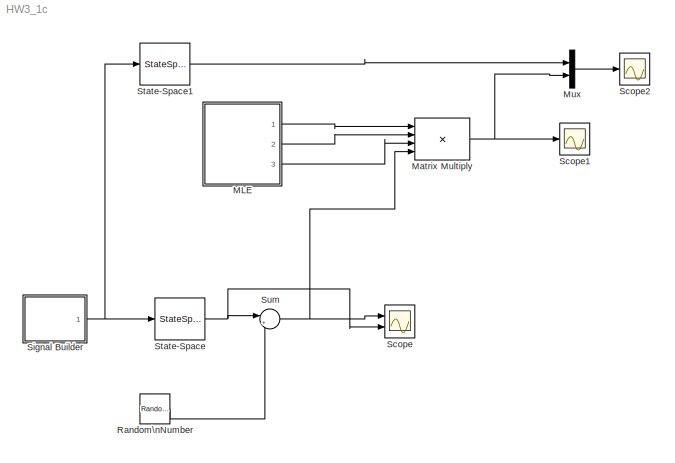
MODEL HW3_1c
KIND model
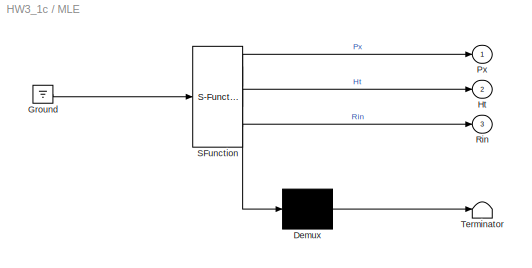
BLOCK [SubSystem] MLE
  ErrorFcn = Stateflow.Translate.translate
  PermitHierarchicalResolution = ExplicitOnly
  Ports = [0, 3]
  RequestExecContextInheritance = off
  SFBlockType = MATLAB Function
  SID = 59
  TreatAsAtomicUnit = on
  Variant = off
BLOCK [Demux] MLE/ Demux 
  Outputs = 1
  Ports = [1, 1]
  SID = 59::29
BLOCK [Ground] MLE/ Ground 
  SID = 59::31
BLOCK [S-Function] MLE/ SFunction 
  EnableBusSupport = on
  FunctionName = sf_sfun
  PortCounts = [1 4]
  Ports = [1, 4]
  SFcnIsStateOwnerBlock = off
  SFunctionDeploymentMode = off
  SID = 59::28
  Tag = Stateflow S-Function HW3_1c 2
BLOCK [Terminator] MLE/ Terminator 
  SID = 59::30
BLOCK [Outport] MLE/Ht
  IconDisplay = Port number
  Port = 2
  SID = 59::26
BLOCK [Outport] MLE/Px
  IconDisplay = Port number
  SID = 59::27
BLOCK [Outport] MLE/Rin
  IconDisplay = Port number
  Port = 3
  SID = 59::24
BLOCK [Product] Matrix Multiply
  InputSameDT = off
  Inputs = 4
  Multiplication = Matrix(*)
  OutDataTypeStr = Inherit: Inherit via internal rule
  Ports = [4, 1]
  RndMeth = Floor
  SID = 60
  SaturateOnIntegerOverflow = off
BLOCK [Mux] Mux
  DisplayOption = bar
  Inputs = 2
  Ports = [2, 1]
  SID = 64
BLOCK [RandomNumber] Random\nNumber
  SID = 10
  SampleTime = 0.01
  Variance = [0.0001, 0.0000001, 0.00002, 0.00002]
BLOCK [Scope] Scope
  NumInputPorts = 2
  Ports = [2]
  SID = 11
  ScopeSpecificationString = Simulink.scopes.TimeScopeBlockCfg('CurrentConfiguration', extmgr.ConfigurationSet(extmgr.Configuration('Core','General UI',true),extmgr.Configuration('Core','Source UI',true),extmgr.Configuration('Sources','WiredSimulink',true,'DataLoggingSaveFormat','StructureWithTime','DataLoggingLimitDataPoints',true,'DataLoggingDecimation','1','DataLoggingDecimateData',true),extmgr.Configuration('Visuals','Tim...<+1754ch>
BLOCK [Scope] Scope1
  NumInputPorts = 1
  Ports = [1]
  SID = 61
  ScopeSpecificationString = Simulink.scopes.TimeScopeBlockCfg('CurrentConfiguration', extmgr.ConfigurationSet(extmgr.Configuration('Core','General UI',true),extmgr.Configuration('Core','Source UI',true),extmgr.Configuration('Sources','WiredSimulink',true,'DataLoggingVariableName','ScopeData1','DataLoggingSaveFormat','StructureWithTime','DataLoggingLimitDataPoints',true,'DataLoggingDecimation','1','DataLoggingDecimateData',tr...<+1794ch>
BLOCK [Scope] Scope2
  NumInputPorts = 1
  Ports = [1]
  SID = 65
  ScopeSpecificationString = Simulink.scopes.TimeScopeBlockCfg('CurrentConfiguration', extmgr.ConfigurationSet(extmgr.Configuration('Core','General UI',true),extmgr.Configuration('Core','Source UI',true),extmgr.Configuration('Sources','WiredSimulink',true,'DataLoggingVariableName','ScopeData2','DataLoggingSaveFormat','StructureWithTime','DataLoggingLimitDataPoints',true,'DataLoggingDecimation','1','DataLoggingDecimateData',tr...<+1945ch>
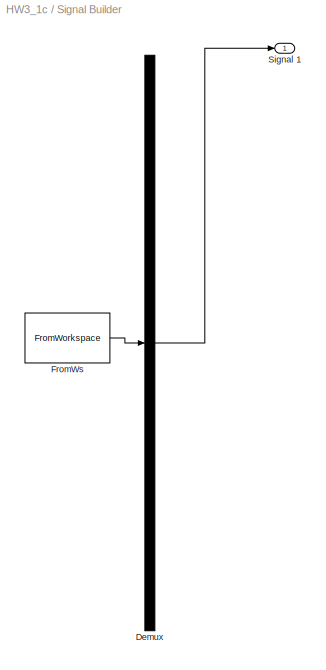
BLOCK [SubSystem] Signal Builder
  ClipboardFcn = sigbuilder_block('clipboard');
  CloseFcn = sigbuilder_block('close');
  ContinueFcn = sigbuilder_block('continue');
  CopyFcn = sigbuilder_block('copy');
  DeleteFcn = sigbuilder_block('delete');
  LoadFcn = sigbuilder_block('load');
  MaskHideContents = on
  ModelCloseFcn = sigbuilder_block('modelClose');
  NameChangeFcn = sigbuilder_block('namechange');
  OpenFcn = sigbuilder_block('open',[6 21 1012.5 492 ]);
  PauseFcn = sigbuilder_block('pause');
  Ports = [0, 1]
  PreSaveFcn = sigbuilder_block('preSave');
  RequestExecContextInheritance = off
  SID = 12
  StartFcn = sigbuilder_block('start');
  StopFcn = sigbuilder_block('stop');
  Tag = STV Subsys
  Variant = off
BLOCK [Demux] Signal Builder/Demux
  Outputs = 1
  Ports = [1, 1]
  SID = 12:1
  Tag = STV Demux
BLOCK [FromWorkspace] Signal Builder/FromWs
  SID = 12:2
  SampleTime = 0
  SigBuilderData = DataTag0
  Tag = STV FromWs
  VariableName = tuvar
  VnvData = DataTag1
  ZeroCross = on
BLOCK [Outport] Signal Builder/Signal 1
  IconDisplay = Port number
  SID = 12:3
  Tag = STV Outport
BLOCK [StateSpace] State-Space
  A = [0 1.0000 0 0;\n0 -0.9965 0 -0.3000;\n-0.3197 -0.5176 -0.0100 -0.7000;\n0 0 -0.0005 -0.9924]
  B = [ 0;\n-0.0013;\n0.0001;\n-0.0201];
  C = [0 0 0.9963 0.0862;\n0 0 -0.0001 0.0017;\n1.0000 0 0 0;\n0 1.0000 0 0]
  ContinuousStateAttributes = { 'Pitch_angle', 'Pitch_rate' ,'X_Axis_Velocity', 'Z_Axis_Velocity'}
  D = [0 ;0; 0 ;0]
  Ports = [1, 1]
  SID = 13
  X0 = 0
BLOCK [StateSpace] State-Space1
  A = [0 1.0000 0 0;\n0 -0.9965 0 -0.3000;\n-0.3197 -0.5176 -0.0100 -0.7000;\n0 0 -0.0005 -0.9924]
  B = [ 0;\n-0.0013;\n0.0001;\n-0.0201];
  C = [ 1 0 0 0; 0 1 0 0; 0 0 1 0; 0 0 0 1];
  ContinuousStateAttributes = { 'Pitch_angle', 'Pitch_rate' ,'X_Axis_Velocity', 'Z_Axis_Velocity'}
  D = [0 ;0; 0 ;0]
  Ports = [1, 1]
  SID = 62
  X0 = 0
BLOCK [Sum] Sum
  IconShape = round
  InputSameDT = off
  Inputs = |++
  OutDataTypeStr = Inherit: Inherit via internal rule
  Ports = [2, 1]
  SID = 14
  SaturateOnIntegerOverflow = off
LINE MLE/ Demux :1 -> MLE/ Terminator :1
LINE MLE/ Ground :1 -> MLE/ SFunction :1
LINE MLE/ SFunction :1 -> MLE/ Demux :1
LINE MLE/ SFunction :2 -> MLE/Px:1
LINE MLE/ SFunction :3 -> MLE/Ht:1
LINE MLE/ SFunction :4 -> MLE/Rin:1
LINE MLE:1 -> Matrix Multiply:1
LINE MLE:2 -> Matrix Multiply:2
LINE MLE:3 -> Matrix Multiply:3
NET Matrix Multiply:1 -> Mux:2, Scope1:1
LINE Mux:1 -> Scope2:1
LINE Random\nNumber:1 -> Sum:2
LINE Signal Builder/Demux:1 -> Signal Builder/Signal 1:1
LINE Signal Builder/FromWs:1 -> Signal Builder/Demux:1
NET Signal Builder:1 -> State-Space1:1, State-Space:1
LINE State-Space1:1 -> Mux:1
NET State-Space:1 -> Scope:2, Sum:1
NET Sum:1 -> Matrix Multiply:4, Scope:1
note: NET lines group one-source signal fan-out (src -> all destinations, sorted); 1:1 wires keep LINE
CHART MLE states=1 transitions=1
  STATE_LABEL 'eML_blk_kernel()'
